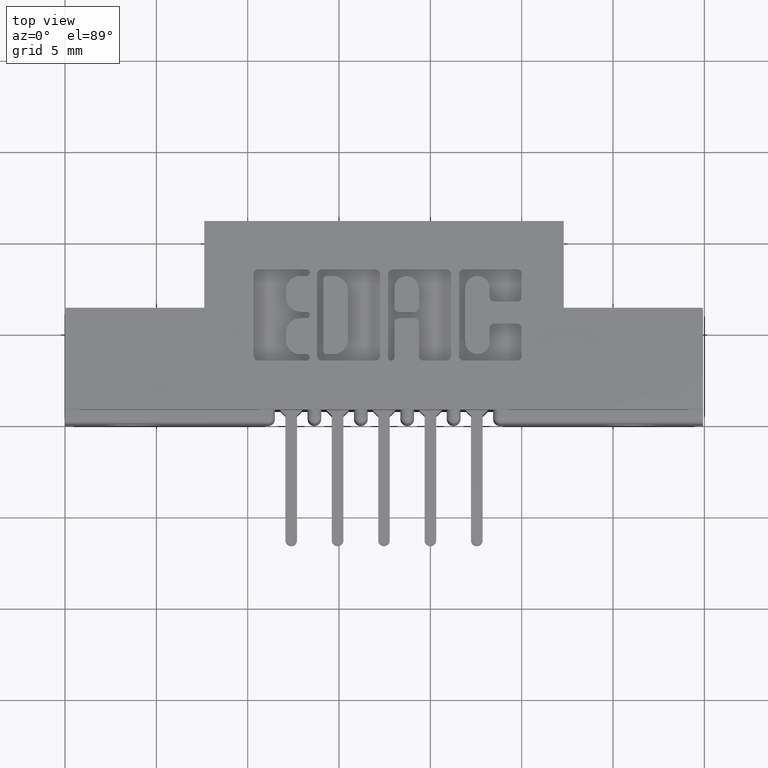
[diagram: clean part render]
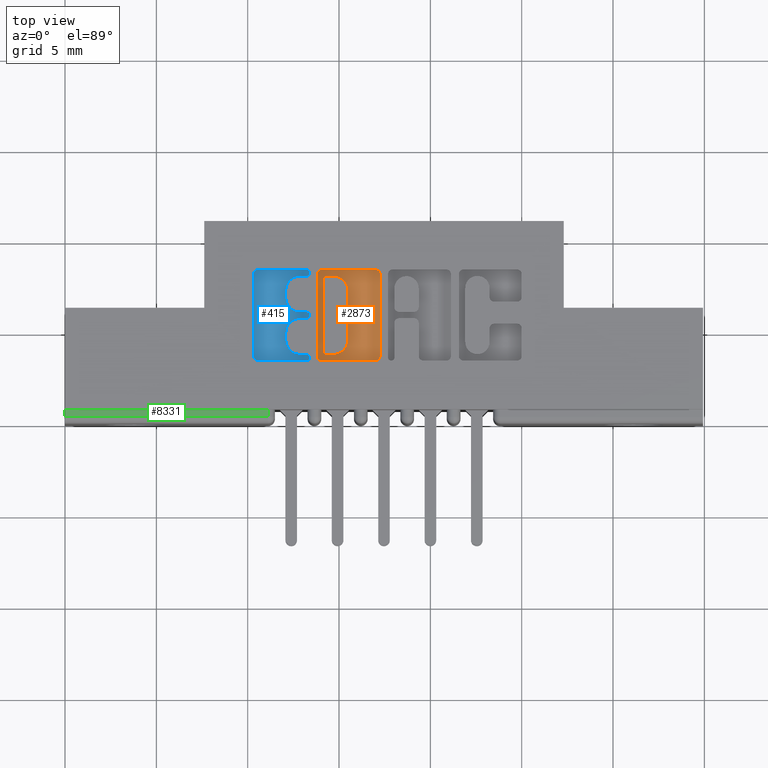
[diagram: same view with three faces highlighted in distinct colors, each labeled with its STEP entity id]
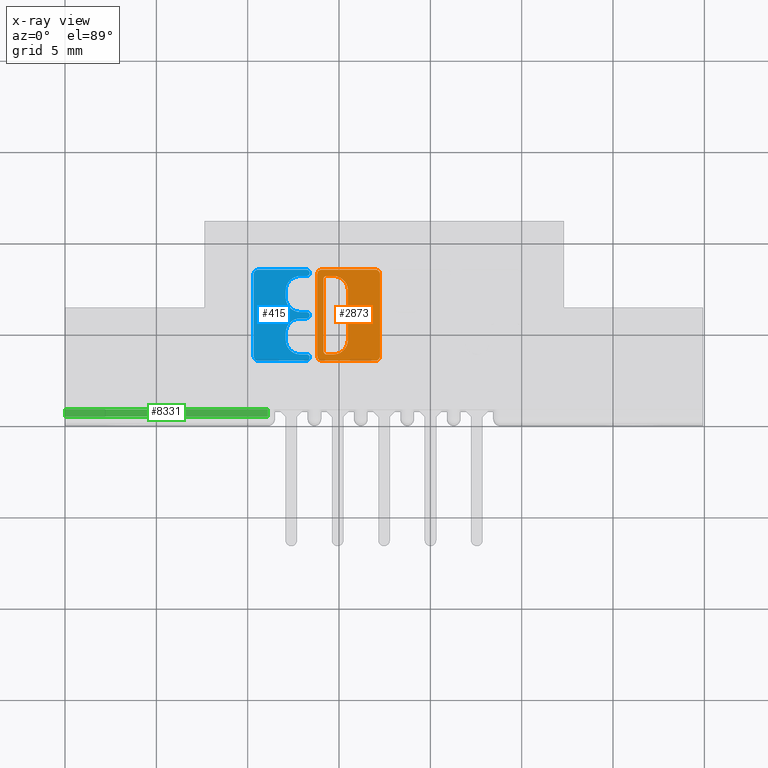
[diagram: x-ray of the same camera — body ghosted, the three highlighted faces saturated]
A machine part, top view with three faces highlighted in distinct colors.
The next image is the same camera in x-ray (body ghosted, the three faces saturated) — at least one of them is partly hidden behind the body in this view.
Their STEP definitions:

[orange] entity #2873 — the highlighted planar face has unit normal (0, 0, 1).
#82 = DIRECTION ( 'NONE',  ( 0.0000000000000000000, 1.000000000000000000, -0.0000000000000000000 ) ) ;
#135 = CARTESIAN_POINT ( 'NONE',  ( 0.5783006689826735200, 0.1809953808994862700, -0.01000000000000000000 ) ) ;
#141 = VERTEX_POINT ( 'NONE', #8013 ) ;
#240 = AXIS2_PLACEMENT_3D ( 'NONE', #2845, #2837, #2817 ) ;
#312 = LINE ( 'NONE', #10221, #10124 ) ;
#313 = VERTEX_POINT ( 'NONE', #10977 ) ;
#934 = CARTESIAN_POINT ( 'NONE',  ( 0.0000000000000000000, 0.3184147637527262600, -0.01000000000000000000 ) ) ;
#971 = DIRECTION ( 'NONE',  ( 1.000000000000000000, 0.0000000000000000000, 0.0000000000000000000 ) ) ;
#1071 = AXIS2_PLACEMENT_3D ( 'NONE', #6887, #6874, #6865 ) ;
#1082 = EDGE_CURVE ( 'NONE', #9844, #1678, #4918, .T. ) ;
#1153 = CARTESIAN_POINT ( 'NONE',  ( 0.5434550397591693100, 0.3223410318342118700, -0.01000000000000000000 ) ) ;
#1167 = CARTESIAN_POINT ( 'NONE',  ( 0.6789112885716690500, 0.0000000000000000000, -0.01000000000000000000 ) ) ;
#1260 = DIRECTION ( 'NONE',  ( 1.000000000000000000, 0.0000000000000000000, 0.0000000000000000000 ) ) ;
#1485 = AXIS2_PLACEMENT_3D ( 'NONE', #135, #6666, #1260 ) ;
#1572 = CIRCLE ( 'NONE', #240, 0.006870969142667761500 ) ;
#1630 = CARTESIAN_POINT ( 'NONE',  ( 0.5640679471871665700, 0.3184147637527262600, -0.01000000000000000000 ) ) ;
#1638 = DIRECTION ( 'NONE',  ( 1.000000000000000000, 0.0000000000000000000, 0.0000000000000000000 ) ) ;
#1673 = EDGE_CURVE ( 'NONE', #4791, #9844, #10805, .T. ) ;
#1678 = VERTEX_POINT ( 'NONE', #10147 ) ;
#1813 = DIRECTION ( 'NONE',  ( 1.000000000000000000, 0.0000000000000000000, 0.0000000000000000000 ) ) ;
#1888 = DIRECTION ( 'NONE',  ( 1.000000000000000000, 0.0000000000000000000, 0.0000000000000000000 ) ) ;
#1994 = EDGE_CURVE ( 'NONE', #3332, #4791, #312, .T. ) ;
#2007 = VECTOR ( 'NONE', #7745, 39.37007874015748100 ) ;
#2153 = CARTESIAN_POINT ( 'NONE',  ( 0.6690956183678621300, 0.1358432979619849400, -0.01000000000000000000 ) ) ;
#2174 = ORIENTED_EDGE ( 'NONE', *, *, #1082, .T. ) ;
#2301 = AXIS2_PLACEMENT_3D ( 'NONE', #5790, #5685, #5650 ) ;
#2336 = CIRCLE ( 'NONE', #2927, 0.009815670203840902800 ) ;
#2486 = ORIENTED_EDGE ( 'NONE', *, *, #6526, .T. ) ;
#2584 = EDGE_CURVE ( 'NONE', #8373, #6922, #4874, .T. ) ;
#2725 = LINE ( 'NONE', #934, #4802 ) ;
#2730 = DIRECTION ( 'NONE',  ( 1.000000000000000000, 0.0000000000000000000, 0.0000000000000000000 ) ) ;
#2817 = DIRECTION ( 'NONE',  ( 1.000000000000000000, 0.0000000000000000000, 0.0000000000000000000 ) ) ;
#2837 = DIRECTION ( 'NONE',  ( -0.0000000000000000000, 0.0000000000000000000, 1.000000000000000000 ) ) ;
#2845 = CARTESIAN_POINT ( 'NONE',  ( 0.5640679471871665700, 0.3115437946100584900, -0.01000000000000000000 ) ) ;
#2873 = ADVANCED_FACE ( 'NONE', ( #10348, #4194 ), #3231, .T. ) ;
#2922 = DIRECTION ( 'NONE',  ( -0.0000000000000000000, 0.0000000000000000000, 1.000000000000000000 ) ) ;
#2927 = AXIS2_PLACEMENT_3D ( 'NONE', #3104, #2922, #2730 ) ;
#2969 = EDGE_CURVE ( 'NONE', #10431, #3332, #9479, .T. ) ;
#3019 = CIRCLE ( 'NONE', #2301, 0.03141014465217194900 ) ;
#3090 = CARTESIAN_POINT ( 'NONE',  ( 0.5571969780444987500, 0.0000000000000000000, -0.01000000000000000000 ) ) ;
#3104 = CARTESIAN_POINT ( 'NONE',  ( 0.5532707099630102000, 0.3223410318342118700, -0.01000000000000000000 ) ) ;
#3196 = ORIENTED_EDGE ( 'NONE', *, *, #5416, .T. ) ;
#3231 = PLANE ( 'NONE',  #5081 ) ;
#3270 = DIRECTION ( 'NONE',  ( -0.0000000000000000000, 0.0000000000000000000, 1.000000000000000000 ) ) ;
#3332 = VERTEX_POINT ( 'NONE', #4757 ) ;
#3681 = DIRECTION ( 'NONE',  ( -1.000000000000000000, 0.0000000000000000000, 0.0000000000000000000 ) ) ;
#3693 = CARTESIAN_POINT ( 'NONE',  ( 0.0000000000000000000, 0.3321567020380528100, -0.01000000000000000000 ) ) ;
#3810 = EDGE_CURVE ( 'NONE', #9364, #10431, #10862, .T. ) ;
#4194 = FACE_OUTER_BOUND ( 'NONE', #5535, .T. ) ;
#4253 = ORIENTED_EDGE ( 'NONE', *, *, #4641, .T. ) ;
#4280 = LINE ( 'NONE', #3693, #6633 ) ;
#4573 = CIRCLE ( 'NONE', #1071, 0.009815670203841039800 ) ;
#4641 = EDGE_CURVE ( 'NONE', #141, #9364, #2336, .T. ) ;
#4702 = CARTESIAN_POINT ( 'NONE',  ( 0.5571969780444987500, 0.1564562053899792600, -0.01000000000000000000 ) ) ;
#4735 = CARTESIAN_POINT ( 'NONE',  ( 0.5640679471871620200, 0.1564562053899792600, -0.01000000000000000000 ) ) ;
#4751 = VECTOR ( 'NONE', #82, 39.37007874015748100 ) ;
#4755 = DIRECTION ( 'NONE',  ( -0.0000000000000000000, 0.0000000000000000000, 1.000000000000000000 ) ) ;
#4757 = CARTESIAN_POINT ( 'NONE',  ( 0.5532707099629760000, 0.1358432979619849400, -0.01000000000000000000 ) ) ;
#4791 = VERTEX_POINT ( 'NONE', #2153 ) ;
#4802 = VECTOR ( 'NONE', #971, 39.37007874015748100 ) ;
#4814 = CARTESIAN_POINT ( 'NONE',  ( 0.6097108136348437000, 0.1809953808994862700, -0.01000000000000000000 ) ) ;
#4861 = CARTESIAN_POINT ( 'NONE',  ( 0.5640679471871620200, 0.1495852362473160100, -0.01000000000000000000 ) ) ;
#4874 = CIRCLE ( 'NONE', #5598, 0.006870969142663253800 ) ;
#4918 = LINE ( 'NONE', #1167, #2007 ) ;
#4931 = ORIENTED_EDGE ( 'NONE', *, *, #2584, .F. ) ;
#5066 = AXIS2_PLACEMENT_3D ( 'NONE', #9974, #3270, #6134 ) ;
#5081 = AXIS2_PLACEMENT_3D ( 'NONE', #8388, #8340, #1888 ) ;
#5179 = ORIENTED_EDGE ( 'NONE', *, *, #10351, .T. ) ;
#5282 = EDGE_CURVE ( 'NONE', #313, #9091, #3019, .T. ) ;
#5416 = EDGE_CURVE ( 'NONE', #6221, #141, #4280, .T. ) ;
#5535 = EDGE_LOOP ( 'NONE', ( #2174, #2486, #3196, #4253, #5758, #5882, #6363, #6951 ) ) ;
#5546 = VERTEX_POINT ( 'NONE', #1630 ) ;
#5598 = AXIS2_PLACEMENT_3D ( 'NONE', #4735, #4755, #7333 ) ;
#5650 = DIRECTION ( 'NONE',  ( 1.000000000000000000, 0.0000000000000000000, 0.0000000000000000000 ) ) ;
#5669 = DIRECTION ( 'NONE',  ( -1.000000000000000000, 0.0000000000000000000, 0.0000000000000000000 ) ) ;
#5685 = DIRECTION ( 'NONE',  ( -0.0000000000000000000, 0.0000000000000000000, 1.000000000000000000 ) ) ;
#5712 = CARTESIAN_POINT ( 'NONE',  ( 0.0000000000000000000, 0.1495852362473160100, -0.01000000000000000000 ) ) ;
#5758 = ORIENTED_EDGE ( 'NONE', *, *, #3810, .T. ) ;
#5773 = DIRECTION ( 'NONE',  ( 0.0000000000000000000, -1.000000000000000000, 0.0000000000000000000 ) ) ;
#5779 = LINE ( 'NONE', #7176, #9744 ) ;
#5790 = CARTESIAN_POINT ( 'NONE',  ( 0.5783006689826718500, 0.2870046191005543000, -0.01000000000000000000 ) ) ;
#5882 = ORIENTED_EDGE ( 'NONE', *, *, #2969, .T. ) ;
#5940 = CARTESIAN_POINT ( 'NONE',  ( 0.5434550397591693100, 0.0000000000000000000, -0.01000000000000000000 ) ) ;
#6134 = DIRECTION ( 'NONE',  ( 1.000000000000000000, 0.0000000000000000000, 0.0000000000000000000 ) ) ;
#6221 = VERTEX_POINT ( 'NONE', #8415 ) ;
#6363 = ORIENTED_EDGE ( 'NONE', *, *, #1994, .T. ) ;
#6526 = EDGE_CURVE ( 'NONE', #1678, #6221, #4573, .T. ) ;
#6633 = VECTOR ( 'NONE', #3681, 39.37007874015748100 ) ;
#6666 = DIRECTION ( 'NONE',  ( -0.0000000000000000000, 0.0000000000000000000, 1.000000000000000000 ) ) ;
#6756 = EDGE_CURVE ( 'NONE', #9810, #6922, #7282, .T. ) ;
#6775 = ORIENTED_EDGE ( 'NONE', *, *, #7320, .F. ) ;
#6841 = DIRECTION ( 'NONE',  ( -0.0000000000000000000, 0.0000000000000000000, 1.000000000000000000 ) ) ;
#6863 = AXIS2_PLACEMENT_3D ( 'NONE', #10608, #6841, #1813 ) ;
#6865 = DIRECTION ( 'NONE',  ( 1.000000000000000000, 0.0000000000000000000, 0.0000000000000000000 ) ) ;
#6874 = DIRECTION ( 'NONE',  ( -0.0000000000000000000, 0.0000000000000000000, 1.000000000000000000 ) ) ;
#6887 = CARTESIAN_POINT ( 'NONE',  ( 0.6690956183678279400, 0.3223410318342117000, -0.01000000000000000000 ) ) ;
#6919 = VECTOR ( 'NONE', #5773, 39.37007874015748100 ) ;
#6922 = VERTEX_POINT ( 'NONE', #4861 ) ;
#6951 = ORIENTED_EDGE ( 'NONE', *, *, #1673, .T. ) ;
#6953 = VERTEX_POINT ( 'NONE', #4814 ) ;
#7176 = CARTESIAN_POINT ( 'NONE',  ( 0.6097108136348437000, 0.0000000000000000000, -0.01000000000000000000 ) ) ;
#7282 = LINE ( 'NONE', #5712, #9078 ) ;
#7320 = EDGE_CURVE ( 'NONE', #5546, #8446, #1572, .T. ) ;
#7333 = DIRECTION ( 'NONE',  ( 1.000000000000000000, 0.0000000000000000000, 0.0000000000000000000 ) ) ;
#7342 = ORIENTED_EDGE ( 'NONE', *, *, #7614, .T. ) ;
#7436 = CARTESIAN_POINT ( 'NONE',  ( 0.6789112885716690500, 0.1456589681657917100, -0.01000000000000000000 ) ) ;
#7480 = ORIENTED_EDGE ( 'NONE', *, *, #5282, .F. ) ;
#7614 = EDGE_CURVE ( 'NONE', #5546, #9091, #2725, .T. ) ;
#7745 = DIRECTION ( 'NONE',  ( 0.0000000000000000000, 1.000000000000000000, -0.0000000000000000000 ) ) ;
#7976 = DIRECTION ( 'NONE',  ( 0.0000000000000000000, -1.000000000000000000, 0.0000000000000000000 ) ) ;
#8013 = CARTESIAN_POINT ( 'NONE',  ( 0.5532707099630102000, 0.3321567020380528100, -0.01000000000000000000 ) ) ;
#8167 = CARTESIAN_POINT ( 'NONE',  ( 0.5571969780444987500, 0.3115437946100584900, -0.01000000000000000000 ) ) ;
#8262 = EDGE_CURVE ( 'NONE', #313, #6953, #5779, .T. ) ;
#8340 = DIRECTION ( 'NONE',  ( -0.0000000000000000000, 0.0000000000000000000, 1.000000000000000000 ) ) ;
#8373 = VERTEX_POINT ( 'NONE', #4702 ) ;
#8388 = CARTESIAN_POINT ( 'NONE',  ( 0.0000000000000000000, 0.0000000000000000000, -0.01000000000000000000 ) ) ;
#8415 = CARTESIAN_POINT ( 'NONE',  ( 0.6690956183678961100, 0.3321567020380528100, -0.01000000000000000000 ) ) ;
#8446 = VERTEX_POINT ( 'NONE', #8167 ) ;
#8773 = ORIENTED_EDGE ( 'NONE', *, *, #8262, .T. ) ;
#9078 = VECTOR ( 'NONE', #5669, 39.37007874015748100 ) ;
#9086 = CARTESIAN_POINT ( 'NONE',  ( 0.5434550397591693100, 0.1456589681657917100, -0.01000000000000000000 ) ) ;
#9091 = VERTEX_POINT ( 'NONE', #9446 ) ;
#9131 = LINE ( 'NONE', #3090, #4751 ) ;
#9317 = ORIENTED_EDGE ( 'NONE', *, *, #9859, .F. ) ;
#9364 = VERTEX_POINT ( 'NONE', #1153 ) ;
#9446 = CARTESIAN_POINT ( 'NONE',  ( 0.5783006689826779600, 0.3184147637527262600, -0.01000000000000000000 ) ) ;
#9479 = CIRCLE ( 'NONE', #5066, 0.009815670203806754800 ) ;
#9651 = CARTESIAN_POINT ( 'NONE',  ( 0.5783006689826735200, 0.1495852362473160100, -0.01000000000000000000 ) ) ;
#9744 = VECTOR ( 'NONE', #7976, 39.37007874015748100 ) ;
#9810 = VERTEX_POINT ( 'NONE', #9651 ) ;
#9825 = CIRCLE ( 'NONE', #1485, 0.03141014465217023500 ) ;
#9844 = VERTEX_POINT ( 'NONE', #7436 ) ;
#9859 = EDGE_CURVE ( 'NONE', #9810, #6953, #9825, .T. ) ;
#9974 = CARTESIAN_POINT ( 'NONE',  ( 0.5532707099629760000, 0.1456589681657917100, -0.01000000000000000000 ) ) ;
#10124 = VECTOR ( 'NONE', #1638, 39.37007874015748100 ) ;
#10147 = CARTESIAN_POINT ( 'NONE',  ( 0.6789112885716690500, 0.3223410318342118700, -0.01000000000000000000 ) ) ;
#10221 = CARTESIAN_POINT ( 'NONE',  ( 0.0000000000000000000, 0.1358432979619849400, -0.01000000000000000000 ) ) ;
#10348 = FACE_BOUND ( 'NONE', #10911, .T. ) ;
#10351 = EDGE_CURVE ( 'NONE', #8373, #8446, #9131, .T. ) ;
#10431 = VERTEX_POINT ( 'NONE', #9086 ) ;
#10486 = ORIENTED_EDGE ( 'NONE', *, *, #6756, .T. ) ;
#10608 = CARTESIAN_POINT ( 'NONE',  ( 0.6690956183678621300, 0.1456589681657917100, -0.01000000000000000000 ) ) ;
#10805 = CIRCLE ( 'NONE', #6863, 0.009815670203806891800 ) ;
#10862 = LINE ( 'NONE', #5940, #6919 ) ;
#10911 = EDGE_LOOP ( 'NONE', ( #6775, #7342, #7480, #8773, #9317, #10486, #4931, #5179 ) ) ;
#10977 = CARTESIAN_POINT ( 'NONE',  ( 0.6097108136348437000, 0.2870046191005543000, -0.01000000000000000000 ) ) ;

[blue] entity #415 — the highlighted planar face has unit normal (0, 0, 1).
#43 = CARTESIAN_POINT ( 'NONE',  ( 0.4065264404161154600, 0.1456589681657917100, -0.01000000000000000000 ) ) ;
#54 = DIRECTION ( 'NONE',  ( 1.000000000000000000, 0.0000000000000000000, 0.0000000000000000000 ) ) ;
#62 = AXIS2_PLACEMENT_3D ( 'NONE', #1145, #1129, #1112 ) ;
#72 = CARTESIAN_POINT ( 'NONE',  ( 0.4757269153529278300, 0.1809953808994921600, -0.01000000000000000000 ) ) ;
#187 = CARTESIAN_POINT ( 'NONE',  ( 0.5275045756779998000, 0.3252857328953879800, -0.01000000000000000000 ) ) ;
#303 = ORIENTED_EDGE ( 'NONE', *, *, #4933, .T. ) ;
#352 = VECTOR ( 'NONE', #6082, 39.37007874015748100 ) ;
#377 = ORIENTED_EDGE ( 'NONE', *, *, #6112, .F. ) ;
#400 = ORIENTED_EDGE ( 'NONE', *, *, #9372, .T. ) ;
#415 = ADVANCED_FACE ( 'NONE', ( #7644 ), #8420, .T. ) ;
#424 = DIRECTION ( 'NONE',  ( 0.0000000000000000000, -1.000000000000000000, 0.0000000000000000000 ) ) ;
#433 = LINE ( 'NONE', #7007, #5129 ) ;
#499 = ORIENTED_EDGE ( 'NONE', *, *, #9135, .F. ) ;
#705 = AXIS2_PLACEMENT_3D ( 'NONE', #5038, #5034, #5022 ) ;
#710 = EDGE_CURVE ( 'NONE', #7514, #1111, #3537, .T. ) ;
#720 = VERTEX_POINT ( 'NONE', #72 ) ;
#788 = ORIENTED_EDGE ( 'NONE', *, *, #8005, .T. ) ;
#835 = LINE ( 'NONE', #6296, #9716 ) ;
#871 = CARTESIAN_POINT ( 'NONE',  ( 0.5071370600050840700, 0.2271290308573585800, -0.01000000000000000000 ) ) ;
#906 = CARTESIAN_POINT ( 'NONE',  ( 0.5071370600051096100, 0.1809953808994921600, -0.01000000000000000000 ) ) ;
#1014 = DIRECTION ( 'NONE',  ( 1.000000000000000000, 0.0000000000000000000, 0.0000000000000000000 ) ) ;
#1016 = ORIENTED_EDGE ( 'NONE', *, *, #5567, .T. ) ;
#1026 = ORIENTED_EDGE ( 'NONE', *, *, #8358, .F. ) ;
#1111 = VERTEX_POINT ( 'NONE', #10185 ) ;
#1112 = DIRECTION ( 'NONE',  ( 1.000000000000000000, 0.0000000000000000000, 0.0000000000000000000 ) ) ;
#1129 = DIRECTION ( 'NONE',  ( -0.0000000000000000000, 0.0000000000000000000, 1.000000000000000000 ) ) ;
#1145 = CARTESIAN_POINT ( 'NONE',  ( 0.5206336065353512900, 0.3252857328953879800, -0.01000000000000000000 ) ) ;
#1307 = AXIS2_PLACEMENT_3D ( 'NONE', #9018, #4008, #9753 ) ;
#1392 = DIRECTION ( 'NONE',  ( -1.000000000000000000, 0.0000000000000000000, 0.0000000000000000000 ) ) ;
#1396 = CARTESIAN_POINT ( 'NONE',  ( 0.0000000000000000000, 0.3184147637527374200, -0.01000000000000000000 ) ) ;
#1455 = DIRECTION ( 'NONE',  ( 1.000000000000000000, 0.0000000000000000000, 0.0000000000000000000 ) ) ;
#1483 = DIRECTION ( 'NONE',  ( 1.000000000000000000, 0.0000000000000000000, 0.0000000000000000000 ) ) ;
#1493 = DIRECTION ( 'NONE',  ( -0.0000000000000000000, 0.0000000000000000000, 1.000000000000000000 ) ) ;
#1503 = CARTESIAN_POINT ( 'NONE',  ( 0.5206336065353512900, 0.3321567020380344900, -0.01000000000000000000 ) ) ;
#1513 = AXIS2_PLACEMENT_3D ( 'NONE', #8917, #8905, #8876 ) ;
#1825 = VERTEX_POINT ( 'NONE', #10980 ) ;
#1834 = CIRCLE ( 'NONE', #1307, 0.006870969142648501700 ) ;
#1952 = DIRECTION ( 'NONE',  ( 1.000000000000000000, 0.0000000000000000000, 0.0000000000000000000 ) ) ;
#2008 = CARTESIAN_POINT ( 'NONE',  ( 0.5275045756779734900, 0.2340000000000221100, -0.01000000000000000000 ) ) ;
#2042 = VERTEX_POINT ( 'NONE', #1503 ) ;
#2199 = VERTEX_POINT ( 'NONE', #7886 ) ;
#2264 = CARTESIAN_POINT ( 'NONE',  ( 0.4757269153529278300, 0.1957188862052023100, -0.01000000000000000000 ) ) ;
#2308 = VERTEX_POINT ( 'NONE', #5149 ) ;
#2356 = VERTEX_POINT ( 'NONE', #4207 ) ;
#2403 = LINE ( 'NONE', #8215, #8671 ) ;
#2470 = VERTEX_POINT ( 'NONE', #3792 ) ;
#2587 = ORIENTED_EDGE ( 'NONE', *, *, #710, .T. ) ;
#2751 = AXIS2_PLACEMENT_3D ( 'NONE', #10468, #10502, #10457 ) ;
#2806 = AXIS2_PLACEMENT_3D ( 'NONE', #906, #7240, #1952 ) ;
#2868 = ORIENTED_EDGE ( 'NONE', *, *, #8443, .T. ) ;
#3010 = DIRECTION ( 'NONE',  ( -0.0000000000000000000, 0.0000000000000000000, 1.000000000000000000 ) ) ;
#3318 = VERTEX_POINT ( 'NONE', #5256 ) ;
#3352 = CARTESIAN_POINT ( 'NONE',  ( 0.5206336065353099900, 0.2340000000000221100, -0.01000000000000000000 ) ) ;
#3354 = ORIENTED_EDGE ( 'NONE', *, *, #7574, .T. ) ;
#3480 = CIRCLE ( 'NONE', #10655, 0.006870969142662229500 ) ;
#3537 = CIRCLE ( 'NONE', #8182, 0.006870969142663527000 ) ;
#3761 = EDGE_CURVE ( 'NONE', #2042, #4188, #433, .T. ) ;
#3792 = CARTESIAN_POINT ( 'NONE',  ( 0.4757269153529095600, 0.2870046191005216100, -0.01000000000000000000 ) ) ;
#3939 = DIRECTION ( 'NONE',  ( 0.0000000000000000000, 1.000000000000000000, -0.0000000000000000000 ) ) ;
#3990 = CARTESIAN_POINT ( 'NONE',  ( 0.4757269153529095600, 0.0000000000000000000, -0.01000000000000000000 ) ) ;
#4008 = DIRECTION ( 'NONE',  ( -0.0000000000000000000, 0.0000000000000000000, 1.000000000000000000 ) ) ;
#4066 = CARTESIAN_POINT ( 'NONE',  ( 0.0000000000000000000, 0.2408709691426856000, -0.01000000000000000000 ) ) ;
#4094 = VECTOR ( 'NONE', #5635, 39.37007874015748100 ) ;
#4188 = VERTEX_POINT ( 'NONE', #6752 ) ;
#4207 = CARTESIAN_POINT ( 'NONE',  ( 0.4065264404161154600, 0.3223410318342118700, -0.01000000000000000000 ) ) ;
#4216 = AXIS2_PLACEMENT_3D ( 'NONE', #3352, #9220, #4260 ) ;
#4260 = DIRECTION ( 'NONE',  ( 1.000000000000000000, 0.0000000000000000000, 0.0000000000000000000 ) ) ;
#4274 = ORIENTED_EDGE ( 'NONE', *, *, #6869, .F. ) ;
#4285 = CIRCLE ( 'NONE', #2751, 0.006870969142662229500 ) ;
#4463 = CARTESIAN_POINT ( 'NONE',  ( 0.5206336065353355200, 0.1427142671046497100, -0.01000000000000000000 ) ) ;
#4475 = VECTOR ( 'NONE', #1392, 39.37007874015748100 ) ;
#4688 = ORIENTED_EDGE ( 'NONE', *, *, #9411, .T. ) ;
#4792 = VERTEX_POINT ( 'NONE', #7344 ) ;
#4832 = CARTESIAN_POINT ( 'NONE',  ( 0.5206336064153888100, 0.2271290308573585800, -0.01000000000000000000 ) ) ;
#4933 = EDGE_CURVE ( 'NONE', #5802, #4792, #4285, .T. ) ;
#5022 = DIRECTION ( 'NONE',  ( 1.000000000000000000, 0.0000000000000000000, 0.0000000000000000000 ) ) ;
#5034 = DIRECTION ( 'NONE',  ( -0.0000000000000000000, 0.0000000000000000000, 1.000000000000000000 ) ) ;
#5038 = CARTESIAN_POINT ( 'NONE',  ( 0.5071370600050840700, 0.2722811137948600900, -0.01000000000000000000 ) ) ;
#5100 = CARTESIAN_POINT ( 'NONE',  ( 0.4065264404161154600, 0.0000000000000000000, -0.01000000000000000000 ) ) ;
#5129 = VECTOR ( 'NONE', #7995, 39.37007874015748100 ) ;
#5149 = CARTESIAN_POINT ( 'NONE',  ( 0.5071370600051254800, 0.3184147637527374200, -0.01000000000000000000 ) ) ;
#5190 = CARTESIAN_POINT ( 'NONE',  ( 0.4757269153529278300, 0.0000000000000000000, -0.01000000000000000000 ) ) ;
#5199 = ORIENTED_EDGE ( 'NONE', *, *, #3761, .T. ) ;
#5256 = CARTESIAN_POINT ( 'NONE',  ( 0.5071370600051096100, 0.1495852362473103800, -0.01000000000000000000 ) ) ;
#5286 = CIRCLE ( 'NONE', #7772, 0.009815670203805868300 ) ;
#5334 = DIRECTION ( 'NONE',  ( 1.000000000000000000, 0.0000000000000000000, 0.0000000000000000000 ) ) ;
#5351 = ORIENTED_EDGE ( 'NONE', *, *, #9818, .T. ) ;
#5432 = ORIENTED_EDGE ( 'NONE', *, *, #10559, .T. ) ;
#5567 = EDGE_CURVE ( 'NONE', #2308, #5708, #9082, .T. ) ;
#5635 = DIRECTION ( 'NONE',  ( 1.000000000000000000, 0.0000000000000000000, 0.0000000000000000000 ) ) ;
#5667 = CARTESIAN_POINT ( 'NONE',  ( 0.0000000000000000000, 0.2271290308573585800, -0.01000000000000000000 ) ) ;
#5708 = VERTEX_POINT ( 'NONE', #10825 ) ;
#5719 = DIRECTION ( 'NONE',  ( -0.0000000000000000000, 0.0000000000000000000, 1.000000000000000000 ) ) ;
#5726 = CARTESIAN_POINT ( 'NONE',  ( 0.4163421106199186000, 0.1358432979619867400, -0.01000000000000000000 ) ) ;
#5780 = ORIENTED_EDGE ( 'NONE', *, *, #10282, .T. ) ;
#5802 = VERTEX_POINT ( 'NONE', #10582 ) ;
#5822 = CARTESIAN_POINT ( 'NONE',  ( 0.5071370600050840700, 0.2408709691426856000, -0.01000000000000000000 ) ) ;
#5832 = ORIENTED_EDGE ( 'NONE', *, *, #10441, .T. ) ;
#6082 = DIRECTION ( 'NONE',  ( 0.0000000000000000000, 1.000000000000000000, -0.0000000000000000000 ) ) ;
#6112 = EDGE_CURVE ( 'NONE', #2308, #2470, #8588, .T. ) ;
#6171 = ORIENTED_EDGE ( 'NONE', *, *, #9693, .T. ) ;
#6296 = CARTESIAN_POINT ( 'NONE',  ( -9.340608265025006500E-016, 0.1358432979619838800, -0.01000000000000000000 ) ) ;
#6330 = DIRECTION ( 'NONE',  ( 1.000000000000000000, 0.0000000000000000000, 0.0000000000000000000 ) ) ;
#6414 = CIRCLE ( 'NONE', #10586, 0.009815670203822599700 ) ;
#6469 = DIRECTION ( 'NONE',  ( -0.0000000000000000000, 0.0000000000000000000, 1.000000000000000000 ) ) ;
#6610 = VECTOR ( 'NONE', #3939, 39.37007874015748100 ) ;
#6722 = VERTEX_POINT ( 'NONE', #5726 ) ;
#6725 = LINE ( 'NONE', #5667, #4094 ) ;
#6752 = CARTESIAN_POINT ( 'NONE',  ( 0.4163421106199380300, 0.3321567020380344900, -0.01000000000000000000 ) ) ;
#6782 = ORIENTED_EDGE ( 'NONE', *, *, #8755, .T. ) ;
#6869 = EDGE_CURVE ( 'NONE', #1825, #10402, #10307, .T. ) ;
#6976 = CIRCLE ( 'NONE', #10060, 0.03141014465215624000 ) ;
#7007 = CARTESIAN_POINT ( 'NONE',  ( 0.0000000000000000000, 0.3321567020380344900, -0.01000000000000000000 ) ) ;
#7014 = VECTOR ( 'NONE', #1483, 39.37007874015748100 ) ;
#7135 = EDGE_CURVE ( 'NONE', #1825, #2470, #8959, .T. ) ;
#7202 = VECTOR ( 'NONE', #424, 39.37007874015748100 ) ;
#7240 = DIRECTION ( 'NONE',  ( -0.0000000000000000000, 0.0000000000000000000, 1.000000000000000000 ) ) ;
#7251 = ORIENTED_EDGE ( 'NONE', *, *, #10726, .T. ) ;
#7344 = CARTESIAN_POINT ( 'NONE',  ( 0.5206336064154143400, 0.1495852362473119600, -0.01000000000000000000 ) ) ;
#7514 = VERTEX_POINT ( 'NONE', #2008 ) ;
#7574 = EDGE_CURVE ( 'NONE', #5708, #7704, #7649, .T. ) ;
#7641 = VERTEX_POINT ( 'NONE', #871 ) ;
#7644 = FACE_OUTER_BOUND ( 'NONE', #10844, .T. ) ;
#7649 = CIRCLE ( 'NONE', #62, 0.006870969142648501700 ) ;
#7670 = CARTESIAN_POINT ( 'NONE',  ( 0.5206336065353099900, 0.2340000000000221100, -0.01000000000000000000 ) ) ;
#7704 = VERTEX_POINT ( 'NONE', #187 ) ;
#7772 = AXIS2_PLACEMENT_3D ( 'NONE', #8168, #3010, #8931 ) ;
#7886 = CARTESIAN_POINT ( 'NONE',  ( 0.5206336064154143400, 0.1358432979619874600, -0.01000000000000000000 ) ) ;
#7995 = DIRECTION ( 'NONE',  ( -1.000000000000000000, 0.0000000000000000000, 0.0000000000000000000 ) ) ;
#8005 = EDGE_CURVE ( 'NONE', #720, #9901, #9861, .T. ) ;
#8128 = DIRECTION ( 'NONE',  ( -0.0000000000000000000, 0.0000000000000000000, 1.000000000000000000 ) ) ;
#8135 = ORIENTED_EDGE ( 'NONE', *, *, #7135, .T. ) ;
#8168 = CARTESIAN_POINT ( 'NONE',  ( 0.4163421106199222100, 0.1456589681657917100, -0.01000000000000000000 ) ) ;
#8182 = AXIS2_PLACEMENT_3D ( 'NONE', #7670, #1493, #1455 ) ;
#8215 = CARTESIAN_POINT ( 'NONE',  ( -1.778813761844704800E-014, 0.1495852362472500600, -0.01000000000000000000 ) ) ;
#8250 = CARTESIAN_POINT ( 'NONE',  ( 0.0000000000000000000, 0.0000000000000000000, -0.01000000000000000000 ) ) ;
#8358 = EDGE_CURVE ( 'NONE', #7641, #9901, #6976, .T. ) ;
#8420 = PLANE ( 'NONE',  #8712 ) ;
#8443 = EDGE_CURVE ( 'NONE', #7641, #10320, #6725, .T. ) ;
#8588 = CIRCLE ( 'NONE', #1513, 0.03141014465221585900 ) ;
#8671 = VECTOR ( 'NONE', #9695, 39.37007874015748100 ) ;
#8712 = AXIS2_PLACEMENT_3D ( 'NONE', #8250, #8128, #6330 ) ;
#8755 = EDGE_CURVE ( 'NONE', #10320, #7514, #8929, .T. ) ;
#8876 = DIRECTION ( 'NONE',  ( 1.000000000000000000, 0.0000000000000000000, 0.0000000000000000000 ) ) ;
#8905 = DIRECTION ( 'NONE',  ( -0.0000000000000000000, 0.0000000000000000000, 1.000000000000000000 ) ) ;
#8917 = CARTESIAN_POINT ( 'NONE',  ( 0.5071370600051254800, 0.2870046191005216100, -0.01000000000000000000 ) ) ;
#8929 = CIRCLE ( 'NONE', #4216, 0.006870969142663527000 ) ;
#8931 = DIRECTION ( 'NONE',  ( 1.000000000000000000, 0.0000000000000000000, 0.0000000000000000000 ) ) ;
#8959 = LINE ( 'NONE', #3990, #6610 ) ;
#9018 = CARTESIAN_POINT ( 'NONE',  ( 0.5206336065353512900, 0.3252857328953879800, -0.01000000000000000000 ) ) ;
#9082 = LINE ( 'NONE', #1396, #7014 ) ;
#9135 = EDGE_CURVE ( 'NONE', #720, #3318, #10062, .T. ) ;
#9220 = DIRECTION ( 'NONE',  ( -0.0000000000000000000, 0.0000000000000000000, 1.000000000000000000 ) ) ;
#9237 = LINE ( 'NONE', #5100, #7202 ) ;
#9372 = EDGE_CURVE ( 'NONE', #4792, #3318, #2403, .T. ) ;
#9411 = EDGE_CURVE ( 'NONE', #7704, #2042, #1834, .T. ) ;
#9467 = DIRECTION ( 'NONE',  ( 1.000000000000000000, 6.876017002796120400E-015, 0.0000000000000000000 ) ) ;
#9693 = EDGE_CURVE ( 'NONE', #6722, #2199, #835, .T. ) ;
#9695 = DIRECTION ( 'NONE',  ( -1.000000000000000000, -1.189163988687022500E-013, 0.0000000000000000000 ) ) ;
#9716 = VECTOR ( 'NONE', #9467, 39.37007874015748100 ) ;
#9753 = DIRECTION ( 'NONE',  ( 1.000000000000000000, 0.0000000000000000000, 0.0000000000000000000 ) ) ;
#9818 = EDGE_CURVE ( 'NONE', #4188, #2356, #6414, .T. ) ;
#9861 = LINE ( 'NONE', #5190, #352 ) ;
#9901 = VERTEX_POINT ( 'NONE', #2264 ) ;
#10060 = AXIS2_PLACEMENT_3D ( 'NONE', #10956, #6469, #1014 ) ;
#10062 = CIRCLE ( 'NONE', #2806, 0.03141014465218178200 ) ;
#10099 = DIRECTION ( 'NONE',  ( -0.0000000000000000000, 0.0000000000000000000, 1.000000000000000000 ) ) ;
#10185 = CARTESIAN_POINT ( 'NONE',  ( 0.5206336065353099900, 0.2408709691426856000, -0.01000000000000000000 ) ) ;
#10282 = EDGE_CURVE ( 'NONE', #10338, #6722, #5286, .T. ) ;
#10307 = CIRCLE ( 'NONE', #705, 0.03141014465217447500 ) ;
#10320 = VERTEX_POINT ( 'NONE', #4832 ) ;
#10338 = VERTEX_POINT ( 'NONE', #43 ) ;
#10347 = LINE ( 'NONE', #4066, #4475 ) ;
#10371 = CARTESIAN_POINT ( 'NONE',  ( 0.4163421106199380300, 0.3223410318342118700, -0.01000000000000000000 ) ) ;
#10402 = VERTEX_POINT ( 'NONE', #5822 ) ;
#10441 = EDGE_CURVE ( 'NONE', #1111, #10402, #10347, .T. ) ;
#10457 = DIRECTION ( 'NONE',  ( 1.000000000000000000, 0.0000000000000000000, 0.0000000000000000000 ) ) ;
#10468 = CARTESIAN_POINT ( 'NONE',  ( 0.5206336065353355200, 0.1427142671046497100, -0.01000000000000000000 ) ) ;
#10502 = DIRECTION ( 'NONE',  ( -0.0000000000000000000, 0.0000000000000000000, 1.000000000000000000 ) ) ;
#10559 = EDGE_CURVE ( 'NONE', #2356, #10338, #9237, .T. ) ;
#10582 = CARTESIAN_POINT ( 'NONE',  ( 0.5275045756779978000, 0.1427142671046497100, -0.01000000000000000000 ) ) ;
#10586 = AXIS2_PLACEMENT_3D ( 'NONE', #10371, #5719, #54 ) ;
#10655 = AXIS2_PLACEMENT_3D ( 'NONE', #4463, #10099, #5334 ) ;
#10726 = EDGE_CURVE ( 'NONE', #2199, #5802, #3480, .T. ) ;
#10825 = CARTESIAN_POINT ( 'NONE',  ( 0.5206336065353514000, 0.3184147637527374200, -0.01000000000000000000 ) ) ;
#10844 = EDGE_LOOP ( 'NONE', ( #377, #1016, #3354, #4688, #5199, #5351, #5432, #5780, #6171, #7251, #303, #400, #499, #788, #1026, #2868, #6782, #2587, #5832, #4274, #8135 ) ) ;
#10956 = CARTESIAN_POINT ( 'NONE',  ( 0.5071370600050840700, 0.1957188862052023100, -0.01000000000000000000 ) ) ;
#10980 = CARTESIAN_POINT ( 'NONE',  ( 0.4757269153529095600, 0.2722811137948600900, -0.01000000000000000000 ) ) ;

[green] entity #8331 — the highlighted planar face has unit normal (0, 0, -1).
#188 = VECTOR ( 'NONE', #9449, 39.37007874015748100 ) ;
#818 = ORIENTED_EDGE ( 'NONE', *, *, #5918, .T. ) ;
#1885 = VERTEX_POINT ( 'NONE', #5899 ) ;
#1967 = CARTESIAN_POINT ( 'NONE',  ( 1.375000000000000000, -1.224646799147342800E-018, -0.009999999999999962000 ) ) ;
#2755 = EDGE_LOOP ( 'NONE', ( #4308, #818, #3918, #6392 ) ) ;
#3136 = CARTESIAN_POINT ( 'NONE',  ( 0.4372500000000003600, 0.03100000000000000300, -0.009999999999999962000 ) ) ;
#3762 = PLANE ( 'NONE',  #9084 ) ;
#3918 = ORIENTED_EDGE ( 'NONE', *, *, #5964, .T. ) ;
#4271 = LINE ( 'NONE', #10081, #8480 ) ;
#4308 = ORIENTED_EDGE ( 'NONE', *, *, #5839, .T. ) ;
#4670 = DIRECTION ( 'NONE',  ( -1.000000000000000000, 0.0000000000000000000, -0.0000000000000000000 ) ) ;
#4916 = FACE_OUTER_BOUND ( 'NONE', #2755, .T. ) ;
#5205 = CARTESIAN_POINT ( 'NONE',  ( 0.0000000000000000000, 0.01499999999999999900, -0.009999999999999962000 ) ) ;
#5297 = VERTEX_POINT ( 'NONE', #5205 ) ;
#5839 = EDGE_CURVE ( 'NONE', #5297, #1885, #9200, .T. ) ;
#5899 = CARTESIAN_POINT ( 'NONE',  ( 0.4372500000000003600, 0.01499999999999999900, -0.009999999999999962000 ) ) ;
#5918 = EDGE_CURVE ( 'NONE', #1885, #7814, #4271, .T. ) ;
#5964 = EDGE_CURVE ( 'NONE', #7814, #6267, #6348, .T. ) ;
#6027 = EDGE_CURVE ( 'NONE', #6267, #5297, #7776, .T. ) ;
#6267 = VERTEX_POINT ( 'NONE', #8137 ) ;
#6348 = LINE ( 'NONE', #9766, #8249 ) ;
#6392 = ORIENTED_EDGE ( 'NONE', *, *, #6027, .T. ) ;
#7776 = LINE ( 'NONE', #9413, #188 ) ;
#7814 = VERTEX_POINT ( 'NONE', #3136 ) ;
#8137 = CARTESIAN_POINT ( 'NONE',  ( 0.0000000000000000000, 0.03100000000000000300, -0.009999999999999962000 ) ) ;
#8249 = VECTOR ( 'NONE', #9741, 39.37007874015748100 ) ;
#8331 = ADVANCED_FACE ( 'NONE', ( #4916 ), #3762, .F. ) ;
#8480 = VECTOR ( 'NONE', #10107, 39.37007874015748100 ) ;
#9084 = AXIS2_PLACEMENT_3D ( 'NONE', #1967, #9557, #4670 ) ;
#9200 = LINE ( 'NONE', #10259, #10834 ) ;
#9413 = CARTESIAN_POINT ( 'NONE',  ( 0.0000000000000000000, -1.224646799147342800E-018, -0.009999999999999962000 ) ) ;
#9449 = DIRECTION ( 'NONE',  ( -0.0000000000000000000, -1.000000000000000000, -0.0000000000000000000 ) ) ;
#9557 = DIRECTION ( 'NONE',  ( 0.0000000000000000000, 0.0000000000000000000, -1.000000000000000000 ) ) ;
#9741 = DIRECTION ( 'NONE',  ( -1.000000000000000000, -0.0000000000000000000, -0.0000000000000000000 ) ) ;
#9766 = CARTESIAN_POINT ( 'NONE',  ( 1.375000000000000000, 0.03100000000000000300, -0.009999999999999962000 ) ) ;
#10081 = CARTESIAN_POINT ( 'NONE',  ( 0.4372500000000002500, 2.064735398409451100E-015, -0.009999999999999962000 ) ) ;
#10107 = DIRECTION ( 'NONE',  ( 2.203103220696986700E-015, 1.000000000000000000, 0.0000000000000000000 ) ) ;
#10236 = DIRECTION ( 'NONE',  ( 1.000000000000000000, -0.0000000000000000000, -0.0000000000000000000 ) ) ;
#10259 = CARTESIAN_POINT ( 'NONE',  ( 1.375000000000000000, 0.01499999999999999900, -0.009999999999999962000 ) ) ;
#10834 = VECTOR ( 'NONE', #10236, 39.37007874015748100 ) ;